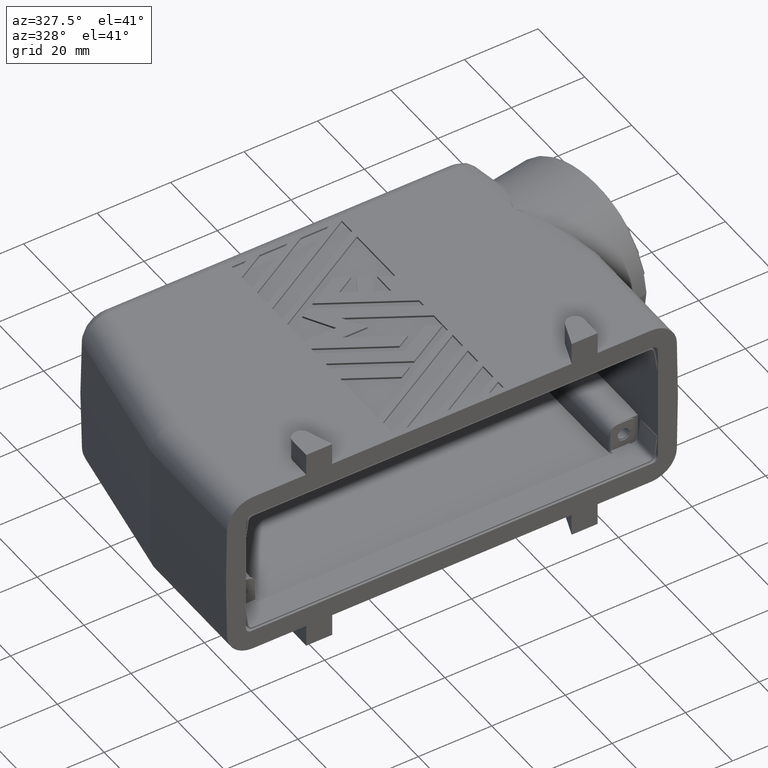
[diagram: clean part render]
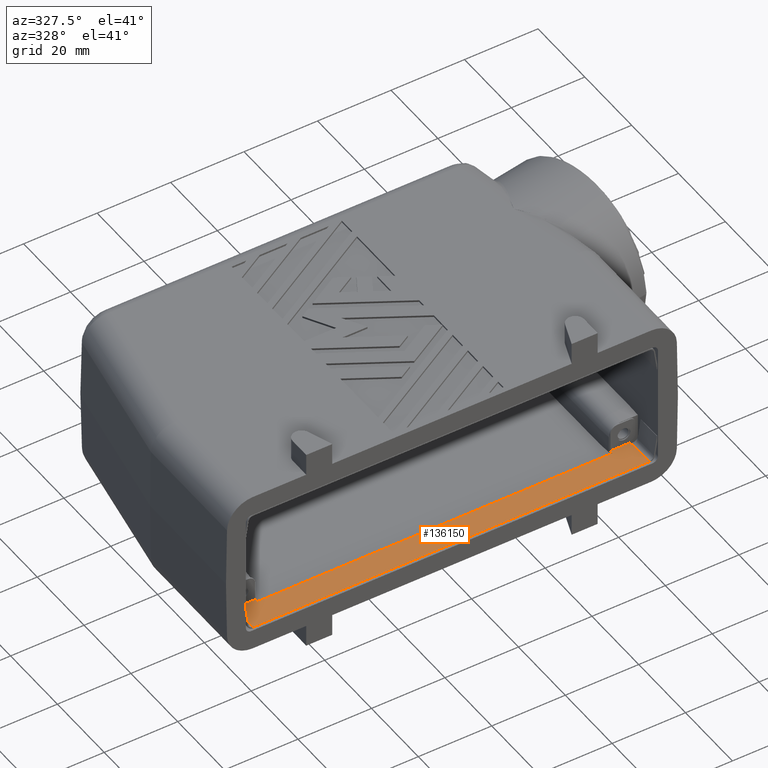
[diagram: same view with one face highlighted and labeled with its STEP entity id]
A machine part, auxiliary view. The second image highlights one B-rep face of the part: STEP entity #136150.
In plain terms, the highlighted planar face has unit normal (0, -0, -1).
Its self-contained STEP definition (entity closure, byte-faithful):
#53460=CARTESIAN_POINT('',(-51.0465020175615,31.4003930000093,
16.9000000000208));
#53470=VERTEX_POINT('',#53460);
#53860=CARTESIAN_POINT('',(-51.0465020175615,32.3003930000094,
16.9000000000208));
#53870=VERTEX_POINT('',#53860);
#53900=CARTESIAN_POINT('',(-51.0465020175615,-13.5997084564488,
16.9000000000208));
#53910=DIRECTION('',(-6.12536841172502E-16,-1.,-2.87297397578668E-16));
#53920=VECTOR('',#53910,1.);
#53930=LINE('',#53900,#53920);
#53940=EDGE_CURVE('',#53870,#53470,#53930,.T.);
#80440=CARTESIAN_POINT('',(51.1534979824388,24.4003930000093,
16.9000000000208));
#80450=VERTEX_POINT('',#80440);
#80480=CARTESIAN_POINT('',(184.253599443686,24.4003930000092,
16.9000000000208));
#80490=DIRECTION('',(1.,-7.84172179307331E-16,-2.25290626368589E-31));
#80500=VECTOR('',#80490,1.);
#80510=LINE('',#80480,#80500);
#80520=CARTESIAN_POINT('',(-56.6465020175607,24.4003930000094,
16.9000000000208));
#80530=VERTEX_POINT('',#80520);
#80540=EDGE_CURVE('',#80530,#80450,#80510,.T.);
#84500=CARTESIAN_POINT('',(184.253599443686,31.4003930000093,
16.9000000000208));
#84510=DIRECTION('',(1.,0.,0.));
#84520=VECTOR('',#84510,1.);
#84530=LINE('',#84500,#84520);
#84540=CARTESIAN_POINT('',(45.5534979824395,31.4003930000093,
16.9000000000208));
#84550=VERTEX_POINT('',#84540);
#84560=EDGE_CURVE('',#53470,#84550,#84530,.T.);
#89160=CARTESIAN_POINT('',(50.8534979824395,31.4003930000093,
16.9000000000208));
#89170=VERTEX_POINT('',#89160);
#89390=CARTESIAN_POINT('',(50.8534979824395,32.3003930000094,
16.9000000000208));
#89400=VERTEX_POINT('',#89390);
#89430=CARTESIAN_POINT('',(50.8534979824395,-13.5997084564488,
16.9000000000208));
#89440=DIRECTION('',(3.06268420586251E-16,1.,2.87297397578668E-16));
#89450=VECTOR('',#89440,1.);
#89460=LINE('',#89430,#89450);
#89470=EDGE_CURVE('',#89170,#89400,#89460,.T.);
#94290=CARTESIAN_POINT('',(-56.3465020175615,32.3003930000095,
16.9000000000208));
#94300=VERTEX_POINT('',#94290);
#94330=CARTESIAN_POINT('',(184.253599443686,32.3003930000094,
16.9000000000208));
#94340=DIRECTION('',(1.,-3.06268420586251E-16,-8.79901201949589E-32));
#94350=VECTOR('',#94340,1.);
#94360=LINE('',#94330,#94350);
#94370=EDGE_CURVE('',#94300,#53870,#94360,.T.);
#100940=CARTESIAN_POINT('',(-56.6465020175607,-13.5997084564488,
16.9000000000208));
#100950=DIRECTION('',(-2.9841538416096E-16,1.,2.87297397578668E-16));
#100960=VECTOR('',#100950,1.);
#100970=LINE('',#100940,#100960);
#100980=CARTESIAN_POINT('',(-56.6465020175607,31.4003930000094,
16.9000000000208));
#100990=VERTEX_POINT('',#100980);
#101000=EDGE_CURVE('',#80530,#100990,#100970,.T.);
#133490=CARTESIAN_POINT('',(51.1534979824388,31.4003930000093,
16.9000000000208));
#133500=VERTEX_POINT('',#133490);
#133530=CARTESIAN_POINT('',(51.1534979824387,-13.5997084564488,
16.9000000000208));
#133540=DIRECTION('',(-9.10952225333462E-16,-1.,-2.87297397578668E-16));
#133550=VECTOR('',#133540,1.);
#133560=LINE('',#133530,#133550);
#133570=EDGE_CURVE('',#133500,#80450,#133560,.T.);
#135670=CARTESIAN_POINT('',(-2.74650201756049,31.4003930000093,
16.9000000000208));
#135680=DIRECTION('',(0.,-2.87297397578668E-16,1.));
#135690=DIRECTION('',(-1.,0.,0.));
#135700=AXIS2_PLACEMENT_3D('',#135670,#135680,#135690);
#135710=PLANE('',#135700);
#135720=CARTESIAN_POINT('',(184.253599443686,31.4003930000092,
16.9000000000208));
#135730=DIRECTION('',(1.,-9.10952225333462E-16,-2.617142036568E-31));
#135740=VECTOR('',#135730,1.);
#135750=LINE('',#135720,#135740);
#135760=EDGE_CURVE('',#89170,#133500,#135750,.T.);
#135770=ORIENTED_EDGE('',*,*,#135760,.T.);
#135780=ORIENTED_EDGE('',*,*,#89470,.F.);
#135790=CARTESIAN_POINT('',(184.253599443686,32.3003930000093,
16.9000000000208));
#135800=DIRECTION('',(1.,-3.06268420586251E-16,-8.79901201949589E-32));
#135810=VECTOR('',#135800,1.);
#135820=LINE('',#135790,#135810);
#135830=CARTESIAN_POINT('',(45.5534979824395,32.3003930000094,
16.9000000000208));
#135840=VERTEX_POINT('',#135830);
#135850=EDGE_CURVE('',#135840,#89400,#135820,.T.);
#135860=ORIENTED_EDGE('',*,*,#135850,.T.);
#135870=CARTESIAN_POINT('',(45.5534979824395,53.5003930000093,
16.9000000000208));
#135880=DIRECTION('',(0.,-1.,-2.87297397578668E-16));
#135890=VECTOR('',#135880,1.);
#135900=LINE('',#135870,#135890);
#135910=EDGE_CURVE('',#135840,#84550,#135900,.T.);
#135920=ORIENTED_EDGE('',*,*,#135910,.F.);
#135930=ORIENTED_EDGE('',*,*,#84560,.T.);
#135940=ORIENTED_EDGE('',*,*,#53940,.T.);
#135950=ORIENTED_EDGE('',*,*,#94370,.T.);
#135960=CARTESIAN_POINT('',(-56.3465020175615,-13.5997084564488,
16.9000000000208));
#135970=DIRECTION('',(-3.06268420586251E-16,-1.,-2.87297397578668E-16));
#135980=VECTOR('',#135970,1.);
#135990=LINE('',#135960,#135980);
#136000=CARTESIAN_POINT('',(-56.3465020175615,31.4003930000094,
16.9000000000208));
#136010=VERTEX_POINT('',#136000);
#136020=EDGE_CURVE('',#94300,#136010,#135990,.T.);
#136030=ORIENTED_EDGE('',*,*,#136020,.F.);
#136040=CARTESIAN_POINT('',(184.253599443686,31.4003930000094,
16.9000000000208));
#136050=DIRECTION('',(1.,2.9841538416096E-16,8.57339632668823E-32));
#136060=VECTOR('',#136050,1.);
#136070=LINE('',#136040,#136060);
#136080=EDGE_CURVE('',#100990,#136010,#136070,.T.);
#136090=ORIENTED_EDGE('',*,*,#136080,.T.);
#136100=ORIENTED_EDGE('',*,*,#101000,.T.);
#136110=ORIENTED_EDGE('',*,*,#80540,.F.);
#136120=ORIENTED_EDGE('',*,*,#133570,.T.);
#136130=EDGE_LOOP('',(#136120,#136110,#136100,#136090,#136030,#135950,
#135940,#135930,#135920,#135860,#135780,#135770));
#136140=FACE_OUTER_BOUND('',#136130,.T.);
#136150=ADVANCED_FACE('',(#136140),#135710,.F.);